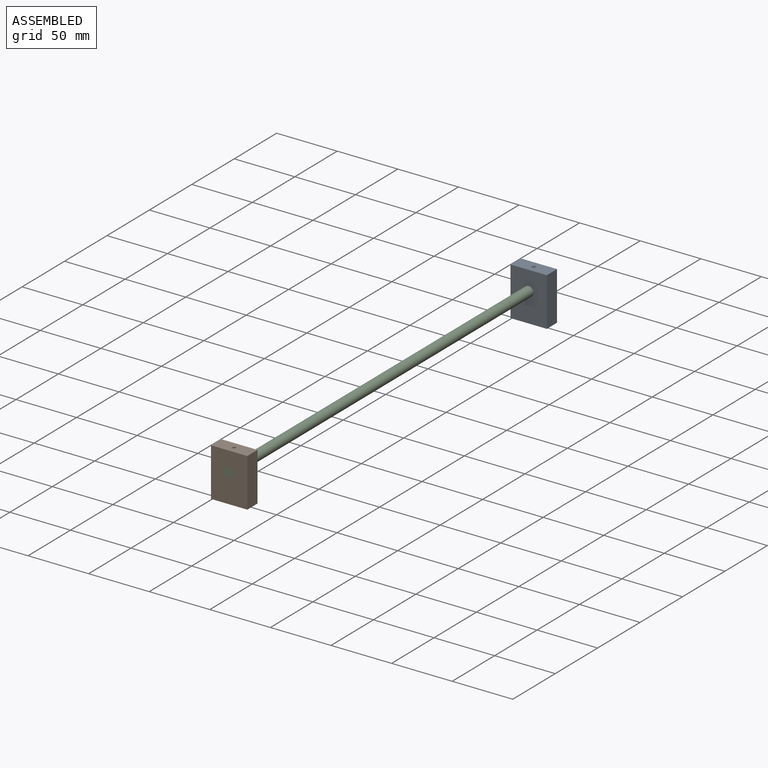
[diagram: assembled view]
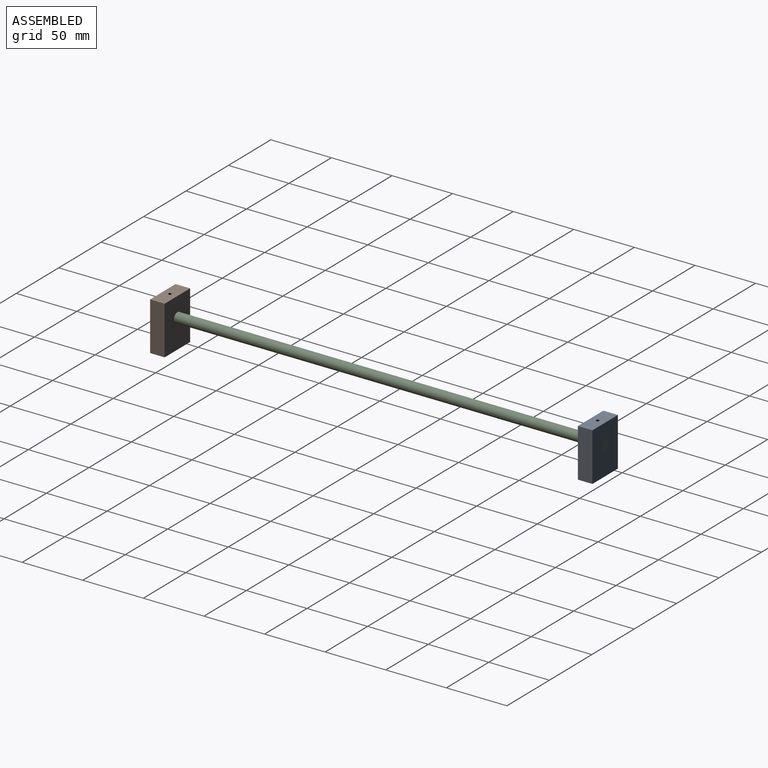
[diagram: assembled view, second angle]
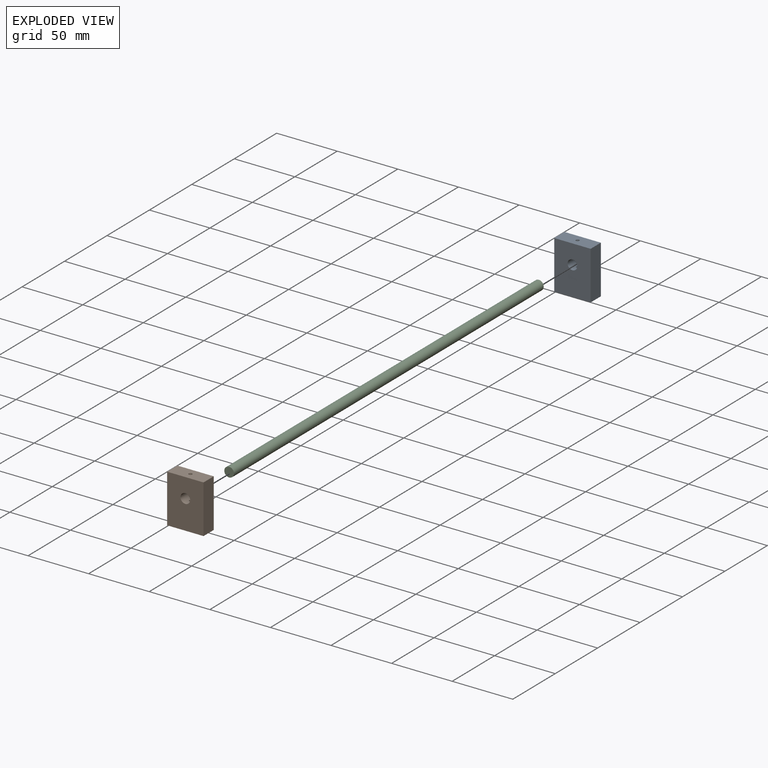
[diagram: exploded view]
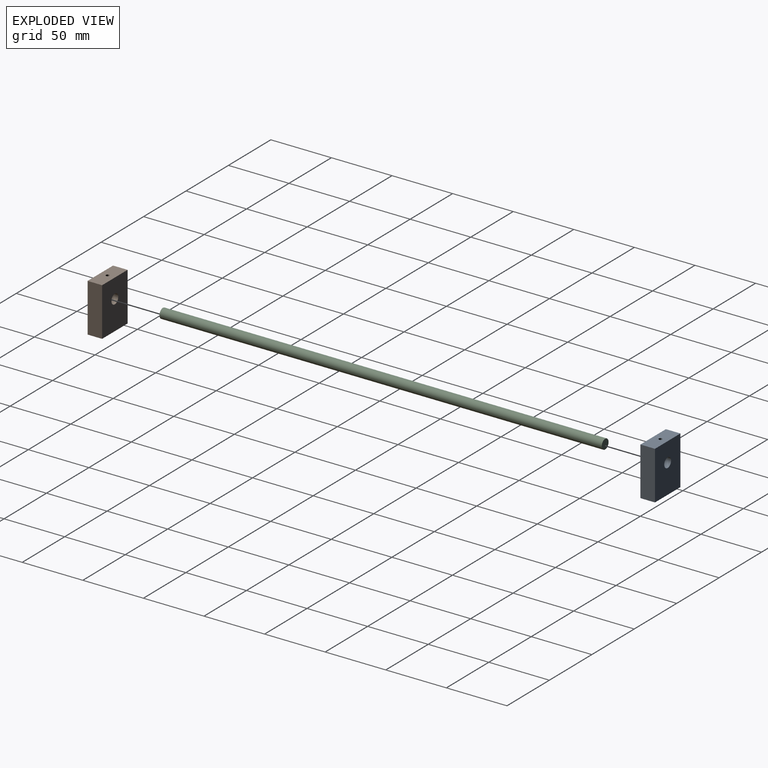
[diagram: exploded view, second angle]
ASSEMBLY  parts=3 mates=2
PART A: 9 faces, bbox 30x12x40 mm
  f0: plane 40x12mm, normal (1,0,0), area 480mm2, adj f1,f3,f4,f5
  f1: plane 40x30mm, normal (0,1,0), area 1149.7mm2, adj f0,f2,f4,f5,f6
  f2: plane 40x12mm, normal (-1,0,0), area 480mm2, adj f1,f3,f4,f5
  f3: plane 40x30mm, normal (0,-1,0), area 1149.7mm2, adj f0,f2,f4,f5,f6
  f4: plane 30x12mm, normal (0,0,1), area 353.8mm2, adj f0,f1,f2,f3,f7
  f5: plane 30x12mm, normal (0,0,-1), area 356.9mm2, adj f0,f1,f2,f3,f8
  f6: cylinder r=4mm len=12mm, axis (0,-1,0), area 292.1mm2, adj f1,f3,f7,f8
  f7: cylinder r=1.4mm len=12.25mm, axis (0,0,1), area 106.7mm2, adj f4,f6
  f8: cylinder r=1mm len=20.13mm, axis (0,0,-1), area 126.1mm2, adj f5,f6
PART B: same geometry as A
PART C: 3 faces, bbox 8x365x8 mm
  f0: plane 8x8mm, normal (0,1,0), area 50.3mm2, adj f1
  f1: cylinder r=4mm len=365mm, axis (0,-1,0), area 9173.5mm2, adj f0,f2
  f2: plane 8x8mm, normal (0,-1,0), area 50.3mm2, adj f1
PLACE A t=(-319.03,423.67,-340.1)mm
PLACE B t=(-319.03,70.67,-340.1)mm
PLACE C t=(-319.03,70.67,-340.1)mm
MATE fastened B.f6 <-> C.f1  axis (0,-1,0) through (-129.03,-114.33,217.4)mm
MATE fastened A.f6 <-> C.f1  axis (0,1,0) through (-129.03,250.67,217.4)mm
